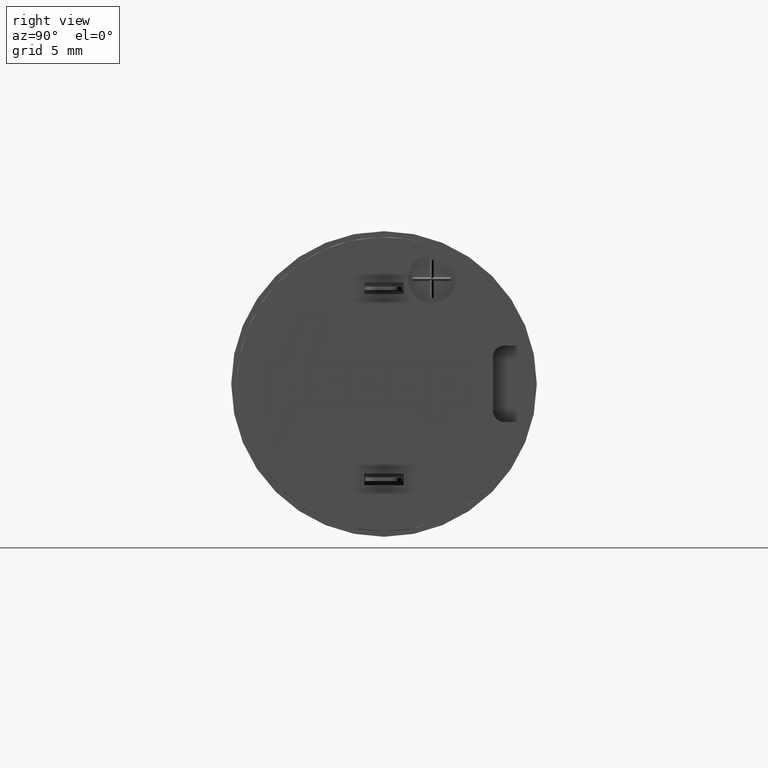
[diagram: clean part render]
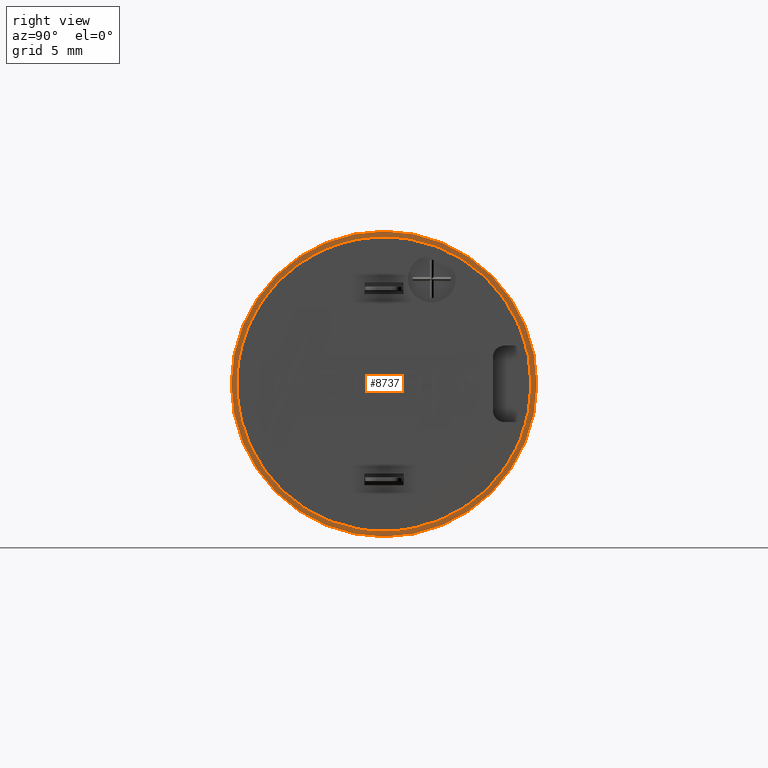
[diagram: same view with one face highlighted and labeled with its STEP entity id]
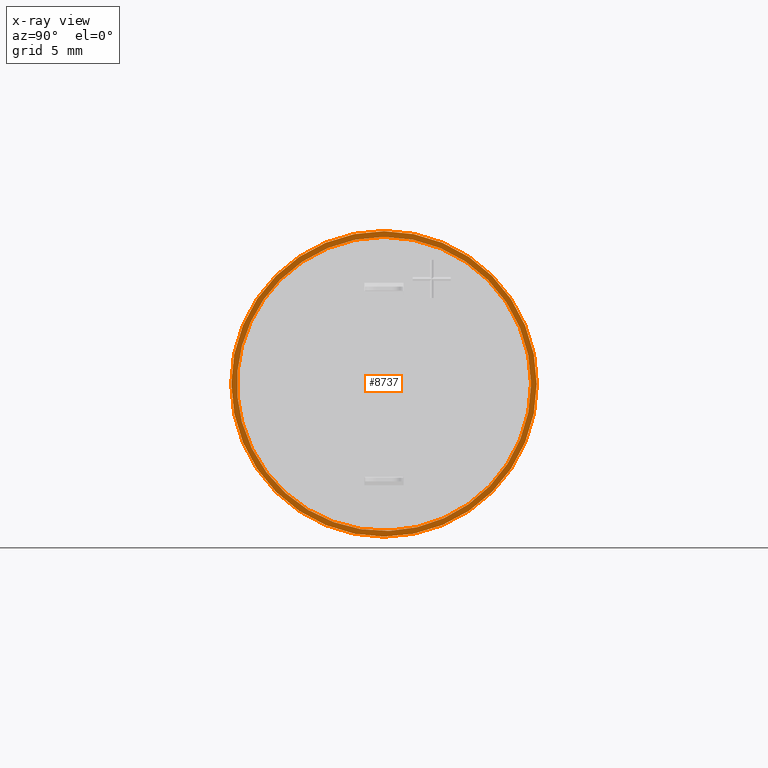
[diagram: x-ray of the same camera — body ghosted, the highlighted face saturated]
A machine part, right view. The second image highlights one B-rep face of the part: STEP entity #8737.
The next image is the same camera in x-ray: the body ghosted, the highlighted face saturated — about 0% of this face is hidden behind the body in this view.
In plain terms, the highlighted planar face has unit normal (1, 0, 0).
Its self-contained STEP definition (entity closure, byte-faithful):
#1047=CARTESIAN_POINT('',(0.E0,1.224646799147E-14,0.E0));
#1048=DIRECTION('',(-1.E0,0.E0,0.E0));
#1049=DIRECTION('',(0.E0,1.E0,0.E0));
#1050=AXIS2_PLACEMENT_3D('',#1047,#1048,#1049);
#1052=CARTESIAN_POINT('',(0.E0,1.224646799147E-14,0.E0));
#1053=DIRECTION('',(-1.E0,0.E0,0.E0));
#1054=DIRECTION('',(0.E0,-1.E0,0.E0));
#1055=AXIS2_PLACEMENT_3D('',#1052,#1053,#1054);
#1057=CARTESIAN_POINT('',(0.E0,1.224646799148E-14,0.E0));
#1058=DIRECTION('',(1.E0,0.E0,0.E0));
#1059=DIRECTION('',(0.E0,-9.659258262891E-1,-2.588190451025E-1));
#1060=AXIS2_PLACEMENT_3D('',#1057,#1058,#1059);
#1062=CARTESIAN_POINT('',(0.E0,1.224646799148E-14,0.E0));
#1063=DIRECTION('',(1.E0,0.E0,0.E0));
#1064=DIRECTION('',(0.E0,1.E0,2.906765737200E-14));
#1065=AXIS2_PLACEMENT_3D('',#1062,#1063,#1064);
#1067=CARTESIAN_POINT('',(0.E0,1.224646799147E-14,0.E0));
#1068=DIRECTION('',(1.E0,0.E0,0.E0));
#1069=DIRECTION('',(0.E0,-7.071067811865E-1,7.071067811865E-1));
#1070=AXIS2_PLACEMENT_3D('',#1067,#1068,#1069);
#6742=CARTESIAN_POINT('',(0.E0,8.E0,0.E0));
#6743=CARTESIAN_POINT('',(0.E0,-8.E0,0.E0));
#6744=VERTEX_POINT('',#6742);
#6745=VERTEX_POINT('',#6743);
#6746=CARTESIAN_POINT('',(0.E0,-7.437628862426E0,-1.992906647289E0));
#6747=CARTESIAN_POINT('',(0.E0,7.7E0,2.253752739989E-13));
#6748=VERTEX_POINT('',#6746);
#6749=VERTEX_POINT('',#6747);
#6750=CARTESIAN_POINT('',(0.E0,-5.444722215136E0,5.444722215136E0));
#6751=VERTEX_POINT('',#6750);
#8720=CARTESIAN_POINT('',(0.E0,1.065814103640E-14,0.E0));
#8721=DIRECTION('',(1.E0,0.E0,0.E0));
#8722=DIRECTION('',(0.E0,1.E0,0.E0));
#8723=AXIS2_PLACEMENT_3D('',#8720,#8721,#8722);
#8724=PLANE('',#8723);
#8726=ORIENTED_EDGE('',*,*,#8725,.T.);
#8728=ORIENTED_EDGE('',*,*,#8727,.T.);
#8729=EDGE_LOOP('',(#8726,#8728));
#8730=FACE_OUTER_BOUND('',#8729,.F.);
#8732=ORIENTED_EDGE('',*,*,#8731,.T.);
#8733=ORIENTED_EDGE('',*,*,#8409,.T.);
#8734=ORIENTED_EDGE('',*,*,#8691,.T.);
#8735=EDGE_LOOP('',(#8732,#8733,#8734));
#8736=FACE_BOUND('',#8735,.F.);
#8737=ADVANCED_FACE('',(#8730,#8736),#8724,.T.);
#1051=CIRCLE('',#1050,8.E0);
#1056=CIRCLE('',#1055,8.E0);
#1061=CIRCLE('',#1060,7.7E0);
#1066=CIRCLE('',#1065,7.7E0);
#1071=CIRCLE('',#1070,7.7E0);
#8409=EDGE_CURVE('',#6749,#6751,#1066,.T.);
#8691=EDGE_CURVE('',#6751,#6748,#1071,.T.);
#8725=EDGE_CURVE('',#6744,#6745,#1051,.T.);
#8727=EDGE_CURVE('',#6745,#6744,#1056,.T.);
#8731=EDGE_CURVE('',#6748,#6749,#1061,.T.);